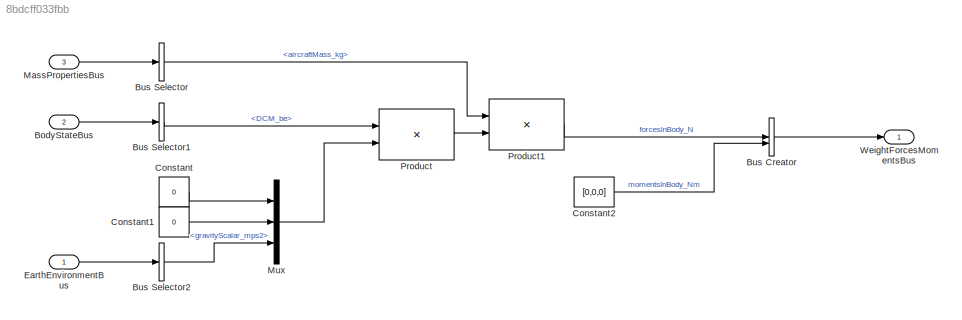
MODEL slx_8bdcff033fbb
KIND model
BLOCK [Inport] BodyStateBus
  OutDataTypeStr = Bus: BodyStateBus
  Port = 2
BLOCK [BusCreator] Bus Creator
  DisplayOption = bar
  InheritFromInputs = on
  Inputs = 2
BLOCK [BusSelector] Bus Selector
  OutputSignals = aircraftMass_kg
BLOCK [BusSelector] Bus Selector1
  OutputSignals = DCM_be
BLOCK [BusSelector] Bus Selector2
  OutputSignals = gravityScalar_mps2
BLOCK [Constant] Constant
  Value = 0
BLOCK [Constant] Constant1
  Value = 0
BLOCK [Constant] Constant2
  Value = [0,0,0]
BLOCK [Inport] EarthEnvironmentBus
  OutDataTypeStr = Bus: EarthEnvironmentBus
BLOCK [Inport] MassPropertiesBus
  OutDataTypeStr = Bus: MassPropertiesBus
  Port = 3
BLOCK [Mux] Mux
  DisplayOption = bar
  Inputs = 3
BLOCK [Product] Product
  Multiplication = Matrix(*)
BLOCK [Product] Product1
BLOCK [Outport] WeightForcesMomentsBus
  OutDataTypeStr = Bus: ComponentForcesMomentsBus
LINE BodyStateBus:1 -> Bus Selector1:1
LINE Bus Creator:1 -> WeightForcesMomentsBus:1
LINE Bus Selector1:1 -> Product:1
LINE Bus Selector2:1 -> Mux:3
LINE Bus Selector:1 -> Product1:1
LINE Constant1:1 -> Mux:2
LINE Constant2:1 -> Bus Creator:2
LINE Constant:1 -> Mux:1
LINE EarthEnvironmentBus:1 -> Bus Selector2:1
LINE MassPropertiesBus:1 -> Bus Selector:1
LINE Mux:1 -> Product:2
LINE Product1:1 -> Bus Creator:1
LINE Product:1 -> Product1:2
